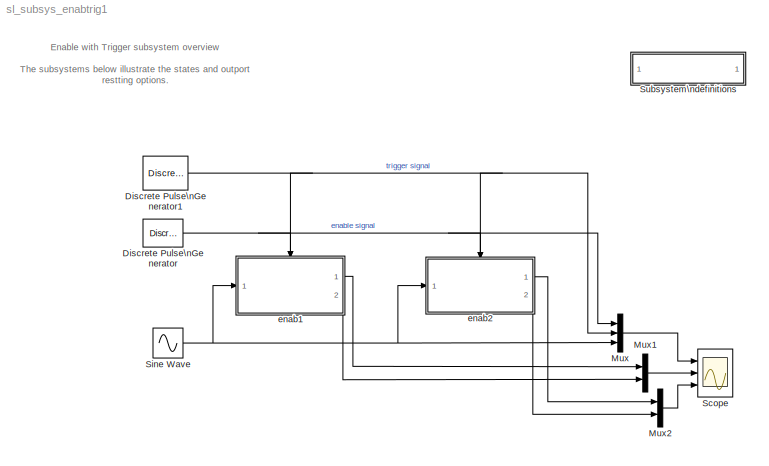
MODEL sl_subsys_enabtrig1
KIND model
BLOCK [SubSystem]  Subsystem\ndefinitions
  MaskDisplay = disp('Subsystem\\ndefinitions')\n\n
  MaskIconFrame = on
  MaskIconOpaque = on
  MaskIconRotate = none
  MaskIconUnits = autoscale
  MinAlgLoopOccurrences = off
  OpenFcn = helpview([matlabroot,'/toolbox/simulink/simdemos/sl_subsys_definitions.html']);
  Ports = []
  PropExecContextAcrossSSBoundary = on
  RTWSystemCode = Auto
  TreatAsAtomicUnit = off
BLOCK [DiscretePulseGenerator] Discrete Pulse\nGenerator
  Period = 20
  Ports = [0, 1]
  PulseWidth = 10
  SampleTime = .25
BLOCK [DiscretePulseGenerator] Discrete Pulse\nGenerator1
  Ports = [0, 1]
  SampleTime = .25
BLOCK [Mux] Mux
  DisplayOption = bar
  Inputs = 3
  Ports = [3, 1]
BLOCK [Mux] Mux1
  DisplayOption = bar
  Inputs = 2
  Ports = [2, 1]
BLOCK [Mux] Mux2
  DisplayOption = bar
  Inputs = 2
  Ports = [2, 1]
BLOCK [Scope] Scope
  DataFormat = StructureWithTime
  NumInputPorts = 3
  Ports = [3]
  SaveToWorkspace = on
  TimeRange = 25
  YMax = 5~5~5
  YMin = -5~-5~-5
BLOCK [Sin] Sine Wave
  Amplitude = 2
  Ports = [0, 1]
  SampleTime = .25
  Samples = 20
  SineType = Sample based
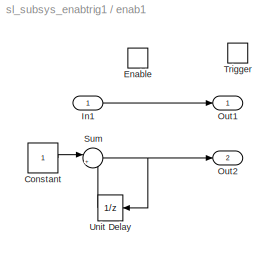
BLOCK [SubSystem] enab1
  MinAlgLoopOccurrences = off
  Ports = [1, 2, 1, 1]
  PropExecContextAcrossSSBoundary = on
  RTWSystemCode = Auto
  TreatAsAtomicUnit = on
BLOCK [Constant] enab1/Constant
BLOCK [EnablePort] enab1/Enable
  AttributesFormatString = States when enabling = %<StatesWhenEnabling>
  Ports = []
  StatesWhenEnabling = reset
BLOCK [Inport] enab1/In1
  IconDisplay = Port number
  LatchInput = off
  Port = 1
BLOCK [Outport] enab1/Out1
  AttributesFormatString = IC=%<InitialOutput>\\nOutput when disabled=%<OutputWhenDisabled>
  IconDisplay = Port number
  InitialOutput = 5
  OutputWhenDisabled = reset
BLOCK [Outport] enab1/Out2
  AttributesFormatString = IC = %<InitialOutput>\\nOutput when disabled = %<OutputWhenDisabled>
  IconDisplay = Port number
  Port = 2
BLOCK [Sum] enab1/Sum
  IconShape = round
  Inputs = |++
  Ports = [2, 1]
BLOCK [TriggerPort] enab1/Trigger
  Ports = []
BLOCK [UnitDelay] enab1/Unit Delay
  SampleTime = -1
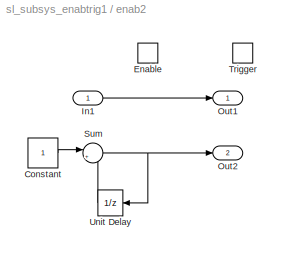
BLOCK [SubSystem] enab2
  MinAlgLoopOccurrences = off
  Ports = [1, 2, 1, 1]
  PropExecContextAcrossSSBoundary = on
  RTWSystemCode = Auto
  TreatAsAtomicUnit = on
BLOCK [Constant] enab2/Constant
BLOCK [EnablePort] enab2/Enable
  AttributesFormatString = States when enabling = %<StatesWhenEnabling>
  Ports = []
BLOCK [Inport] enab2/In1
  IconDisplay = Port number
  LatchInput = off
  Port = 1
BLOCK [Outport] enab2/Out1
  AttributesFormatString = IC=%<InitialOutput>\\nOutput when disabled=%<OutputWhenDisabled>
  IconDisplay = Port number
  InitialOutput = 1
BLOCK [Outport] enab2/Out2
  AttributesFormatString = IC = %<InitialOutput>\\nOutput when disabled = %<OutputWhenDisabled>
  IconDisplay = Port number
  Port = 2
BLOCK [Sum] enab2/Sum
  IconShape = round
  Inputs = |++
  Ports = [2, 1]
BLOCK [TriggerPort] enab2/Trigger
  Ports = []
BLOCK [UnitDelay] enab2/Unit Delay
  SampleTime = -1
ANNOTATION (root): Enable with Trigger subsystem overview\n\nThe subsystems below illustrate the states and outport \nrestting options.
NET Discrete Pulse\nGenerator1:1 -> Mux:2, enab1:trigger, enab2:trigger
NET Discrete Pulse\nGenerator:1 -> Mux:1, enab1:enable, enab2:enable
LINE Mux1:1 -> Scope:2
LINE Mux2:1 -> Scope:3
LINE Mux:1 -> Scope:1
NET Sine Wave:1 -> Mux:3, enab1:1, enab2:1
LINE enab1/Constant:1 -> enab1/Sum:1
LINE enab1/In1:1 -> enab1/Out1:1
NET enab1/Sum:1 -> enab1/Out2:1, enab1/Unit Delay:1
LINE enab1/Unit Delay:1 -> enab1/Sum:2
LINE enab1:1 -> Mux1:1
LINE enab1:2 -> Mux1:2
LINE enab2/Constant:1 -> enab2/Sum:1
LINE enab2/In1:1 -> enab2/Out1:1
NET enab2/Sum:1 -> enab2/Out2:1, enab2/Unit Delay:1
LINE enab2/Unit Delay:1 -> enab2/Sum:2
LINE enab2:1 -> Mux2:1
LINE enab2:2 -> Mux2:2
note: NET lines group one-source signal fan-out (src -> all destinations, sorted); 1:1 wires keep LINE
